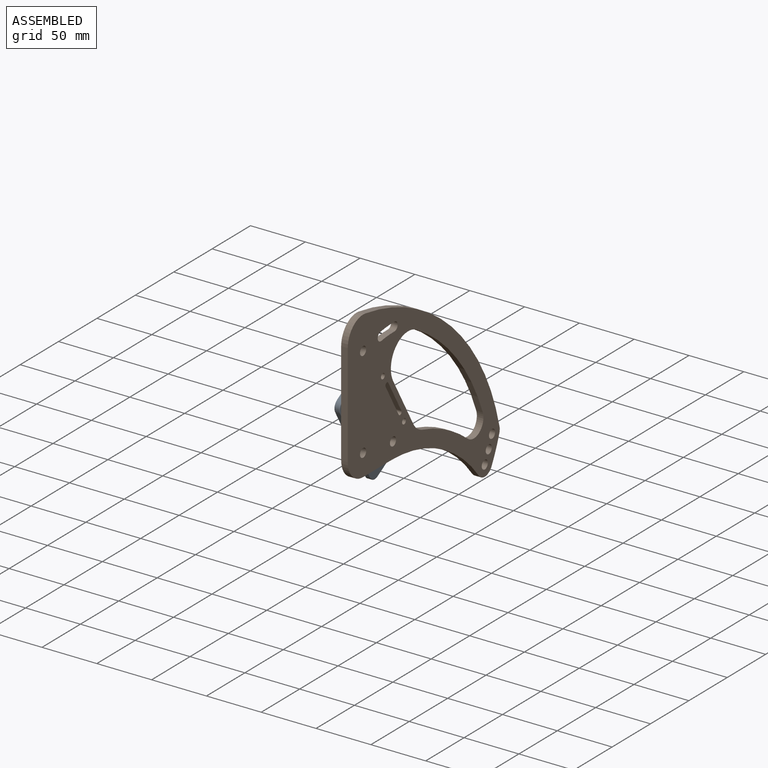
[diagram: assembled view]
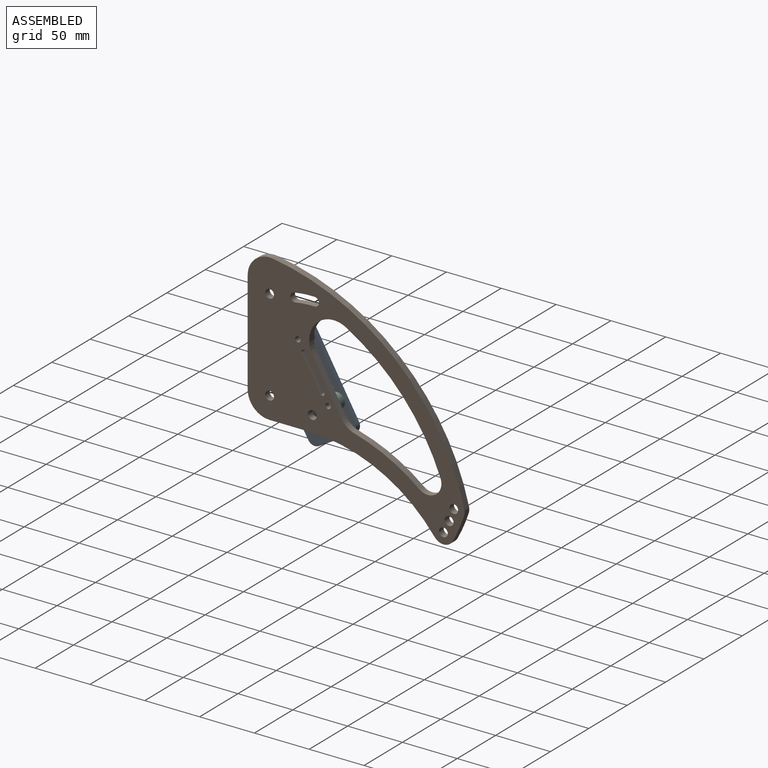
[diagram: assembled view, second angle]
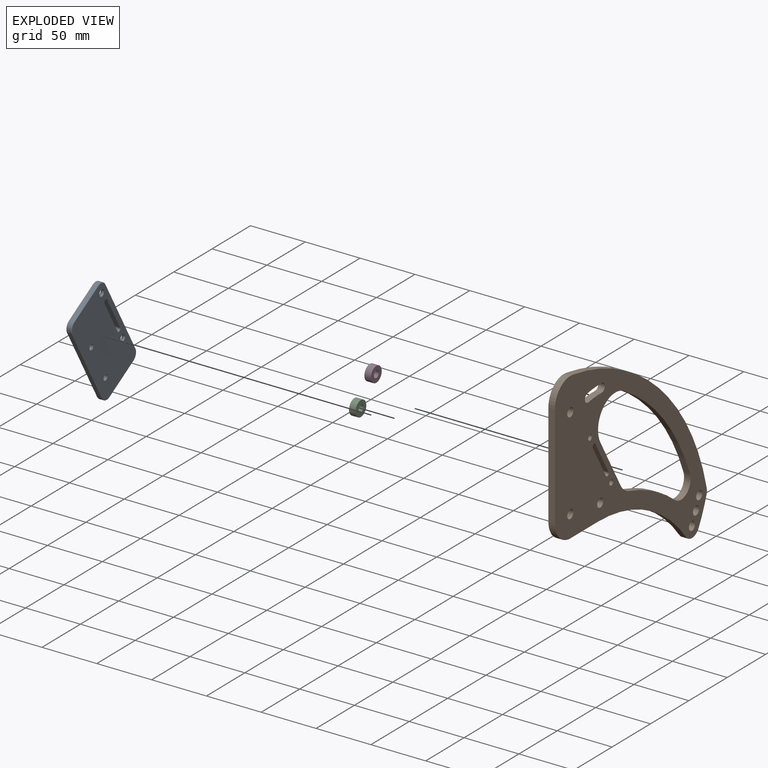
[diagram: exploded view]
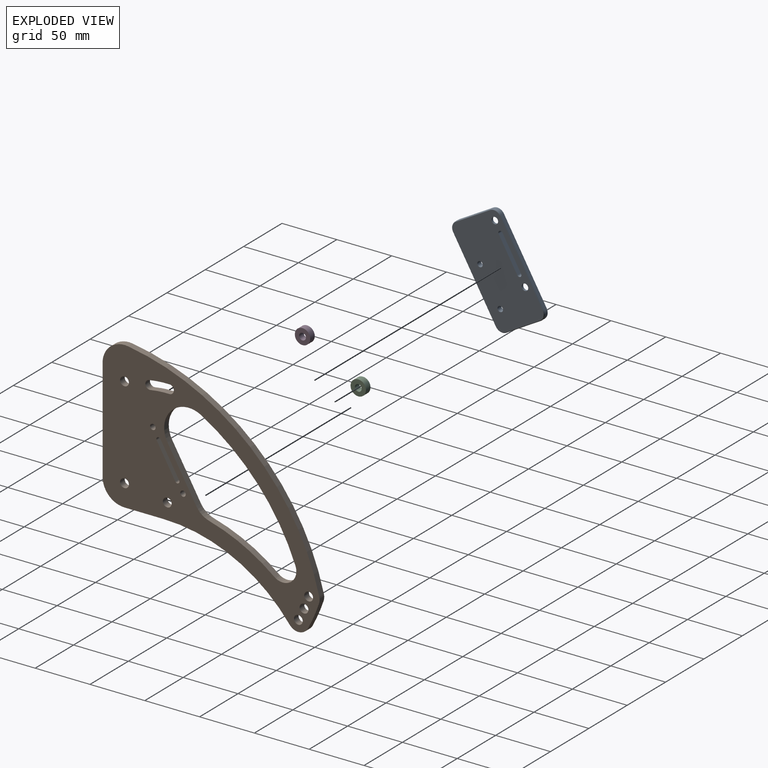
[diagram: exploded view, second angle]
ASSEMBLY  parts=4 mates=3
PART A: 36 faces, bbox 5x85.3x100.7 mm
  f0: plane 67.55x39mm, normal (0,0.87,0.5), area 312mm2, adj f1,f7,f22,f30
  f1: cylinder r=7mm len=9.56mm, axis (1,0,0), area 44mm2, adj f0,f2,f20,f28
  f2: plane 31.18x18mm, normal (0,0.5,-0.87), area 144mm2, adj f1,f3,f18,f26
  f3: cylinder r=7mm len=9.56mm, axis (1,0,0), area 44mm2, adj f2,f4,f16,f24
  f4: plane 67.55x39mm, normal (0,-0.87,-0.5), area 312mm2, adj f3,f5,f15,f23
  f5: cylinder r=7mm len=9.56mm, axis (1,0,0), area 44mm2, adj f4,f6,f17,f25
  f6: plane 31.18x18mm, normal (0,-0.5,0.87), area 144mm2, adj f5,f7,f19,f27
  f7: cylinder r=7mm len=9.56mm, axis (1,0,0), area 44mm2, adj f0,f6,f21,f29
  f8: plane 98.55x83.18mm, normal (-1,0,0), area 4008.7mm2, adj f12,f13,f14,f23,f24,f25,f26,f27
  f9: plane 98.55x83.18mm, normal (1,0,0), area 4178.3mm2, adj f10,f11,f13,f14,f15,f16,f17,f18
  f10: cylinder r=3mm len=6mm, axis (-1,0,0), area 37.7mm2, adj f9,f35
  f11: cylinder r=3mm len=6mm, axis (-1,0,0), area 37.7mm2, adj f9,f12
  f12: cone r=3mm half-angle=45deg, axis (-1,0,0), area 120mm2, adj f8,f11
  f13: cylinder r=2.5mm len=5mm, axis (-1,0,0), area 78.5mm2, adj f8,f9
  f14: cylinder r=2.5mm len=5mm, axis (-1,0,0), area 78.5mm2, adj f8,f9
  f15: cylinder r=0.5mm len=67.8mm, axis (0,-0.5,0.87), area 61.3mm2, adj f4,f9,f16,f17
  f16: torus R=6.5mm, axis (-1,0,0), area 8.4mm2, adj f3,f9,f15,f18
  f17: torus R=6.5mm, axis (-1,0,0), area 8.4mm2, adj f5,f9,f15,f19
  f18: cylinder r=0.5mm len=31.43mm, axis (0,-0.87,-0.5), area 28.3mm2, adj f2,f9,f16,f20
  f19: cylinder r=0.5mm len=31.43mm, axis (0,0.87,0.5), area 28.3mm2, adj f6,f9,f17,f21
  f20: torus R=6.5mm, axis (-1,0,0), area 8.4mm2, adj f1,f9,f18,f22
  f21: torus R=6.5mm, axis (-1,0,0), area 8.4mm2, adj f7,f9,f19,f22
  f22: cylinder r=0.5mm len=67.8mm, axis (0,0.5,-0.87), area 61.3mm2, adj f0,f9,f20,f21
  f23: cylinder r=0.5mm len=67.8mm, axis (0,0.5,-0.87), area 61.3mm2, adj f4,f8,f24,f25
  f24: torus R=6.5mm, axis (-1,0,0), area 8.4mm2, adj f3,f8,f23,f26
  f25: torus R=6.5mm, axis (-1,0,0), area 8.4mm2, adj f5,f8,f23,f27
  f26: cylinder r=0.5mm len=31.43mm, axis (0,0.87,0.5), area 28.3mm2, adj f2,f8,f24,f28
  f27: cylinder r=0.5mm len=31.43mm, axis (0,-0.87,-0.5), area 28.3mm2, adj f6,f8,f25,f29
  f28: torus R=6.5mm, axis (-1,0,0), area 8.4mm2, adj f1,f8,f26,f30
  f29: torus R=6.5mm, axis (-1,0,0), area 8.4mm2, adj f7,f8,f27,f30
  f30: cylinder r=0.5mm len=67.8mm, axis (0,-0.5,0.87), area 61.3mm2, adj f0,f8,f28,f29
  f31: cylinder r=2mm len=5mm, axis (1,0,0), area 31.4mm2, adj f8,f9,f32,f34
  f32: plane 29.45x17mm, normal (0,0.87,0.5), area 170mm2, adj f8,f9,f31,f33
  f33: cylinder r=2mm len=5mm, axis (1,0,0), area 31.4mm2, adj f8,f9,f32,f34
  f34: plane 29.45x17mm, normal (0,-0.87,-0.5), area 170mm2, adj f8,f9,f31,f33
  f35: cone r=3mm half-angle=45deg, axis (-1,0,0), area 120mm2, adj f8,f10
PART B: 33 faces, bbox 6x198x194.2 mm
  f0: plane 198x194.25mm, normal (1,0,0), area 13668mm2, adj f2,f3,f4,f5,f6,f7,f8,f9
  f1: plane 198x194.25mm, normal (-1,0,0), area 13668mm2, adj f2,f3,f4,f5,f6,f7,f8,f9
  f2: cylinder r=10mm len=6mm, axis (-1,0,0), area 33.5mm2, adj f0,f1,f3,f10
  f3: cylinder r=212.1mm len=174.76mm, axis (-1,0,0), area 1508.1mm2, adj f0,f1,f2,f4
  f4: cylinder r=20mm len=22.96mm, axis (-1,0,0), area 206.3mm2, adj f0,f1,f3,f5
  f5: plane 94x6mm, normal (0,-1,0), area 564mm2, adj f0,f1,f4,f6
  f6: cylinder r=20mm len=20mm, axis (-1,0,0), area 188.5mm2, adj f0,f1,f5,f7
  f7: plane 35.91x6mm, normal (0,0,-1), area 215.4mm2, adj f0,f1,f6,f8
  f8: cylinder r=145mm len=114.75mm, axis (-1,0,0), area 794.4mm2, adj f0,f1,f7,f9
  f9: cylinder r=10mm len=16.71mm, axis (-1,0,0), area 119.3mm2, adj f0,f1,f8,f10
  f10: cylinder r=145.98mm len=23.35mm, axis (-1,0,0), area 152.9mm2, adj f0,f1,f2,f9
  f11: cylinder r=4mm len=8mm, axis (-1,0,0), area 150.8mm2, adj f0,f1
  f12: cylinder r=4mm len=8mm, axis (-1,0,0), area 150.8mm2, adj f0,f1
  f13: cylinder r=4mm len=8mm, axis (-1,0,0), area 150.8mm2, adj f0,f1
  f14: cylinder r=98mm len=18.73mm, axis (-1,0,0), area 112.9mm2, adj f0,f1,f15,f17
  f15: cylinder r=4mm len=7.94mm, axis (-1,0,0), area 75.4mm2, adj f0,f1,f14,f16
  f16: cylinder r=90mm len=17.2mm, axis (-1,0,0), area 103.7mm2, adj f0,f1,f15,f17
  f17: cylinder r=4mm len=8mm, axis (-1,0,0), area 75.4mm2, adj f0,f1,f14,f16
  f18: cylinder r=2mm len=6mm, axis (-1,0,0), area 37.7mm2, adj f0,f1,f19,f21
  f19: plane 29.45x17mm, normal (0,0.87,0.5), area 204mm2, adj f0,f1,f18,f20
  f20: cylinder r=2mm len=6mm, axis (-1,0,0), area 37.7mm2, adj f0,f1,f19,f21
  f21: plane 29.45x17mm, normal (0,-0.87,-0.5), area 204mm2, adj f0,f1,f18,f20
  f22: cylinder r=20mm len=12.12mm, axis (-1,0,0), area 94.1mm2, adj f0,f1,f23,f27
  f23: cylinder r=160mm len=58.91mm, axis (-1,0,0), area 399.5mm2, adj f0,f1,f22,f24
  f24: cylinder r=12.5mm len=20.35mm, axis (-1,0,0), area 195.8mm2, adj f0,f1,f23,f25
  f25: cylinder r=197.1mm len=101.25mm, axis (-1,0,0), area 813.6mm2, adj f0,f1,f24,f26
  f26: cylinder r=22.45mm len=33.67mm, axis (-1,0,0), area 352.3mm2, adj f0,f1,f25,f27
  f27: plane 45.4x26.21mm, normal (0,0.87,0.5), area 314.5mm2, adj f0,f1,f22,f26
  f28: cylinder r=4mm len=8mm, axis (1,0,0), area 150.8mm2, adj f0,f1
  f29: cylinder r=4mm len=8mm, axis (1,0,0), area 150.8mm2, adj f0,f1
  f30: cylinder r=4mm len=8mm, axis (1,0,0), area 150.8mm2, adj f0,f1
  f31: cylinder r=2.5mm len=6mm, axis (-1,0,0), area 94.2mm2, adj f0,f1
  f32: cylinder r=2.5mm len=6mm, axis (-1,0,0), area 94.2mm2, adj f0,f1
PART C: 4 faces, bbox 6x14x14 mm
  f0: cylinder r=3.1mm len=6.2mm, axis (1,0,0), area 116.9mm2, adj f2,f3
  f1: cylinder r=7mm len=14mm, axis (1,0,0), area 263.9mm2, adj f2,f3
  f2: plane 14x14mm, normal (-1,0,0), area 123.7mm2, adj f0,f1
  f3: plane 14x14mm, normal (1,0,0), area 123.7mm2, adj f0,f1
PART D: 4 faces, bbox 6x14x14 mm
  f0: cylinder r=3.1mm len=6.2mm, axis (1,0,0), area 116.9mm2, adj f2,f3
  f1: cylinder r=7mm len=14mm, axis (1,0,0), area 263.9mm2, adj f2,f3
  f2: plane 14x14mm, normal (-1,0,0), area 123.7mm2, adj f0,f1
  f3: plane 14x14mm, normal (1,0,0), area 123.7mm2, adj f0,f1
PLACE A t=(-2.84,-79,56.08)mm
PLACE B t=(-2.84,-79,56.08)mm fixed
PLACE C t=(-2.84,-79,56.08)mm
PLACE D t=(-2.84,-79,56.08)mm
MATE fastened C.f0 <-> B.f32  axis (1,0,0) through (-2.84,-25.66,-22.25)mm
MATE fastened D.f0 <-> B.f31  axis (1,0,0) through (-2.84,-53.16,25.38)mm
MATE fastened A.f11 <-> C.f0  axis (1,0,0) through (-8.84,-25.66,-22.25)mm
